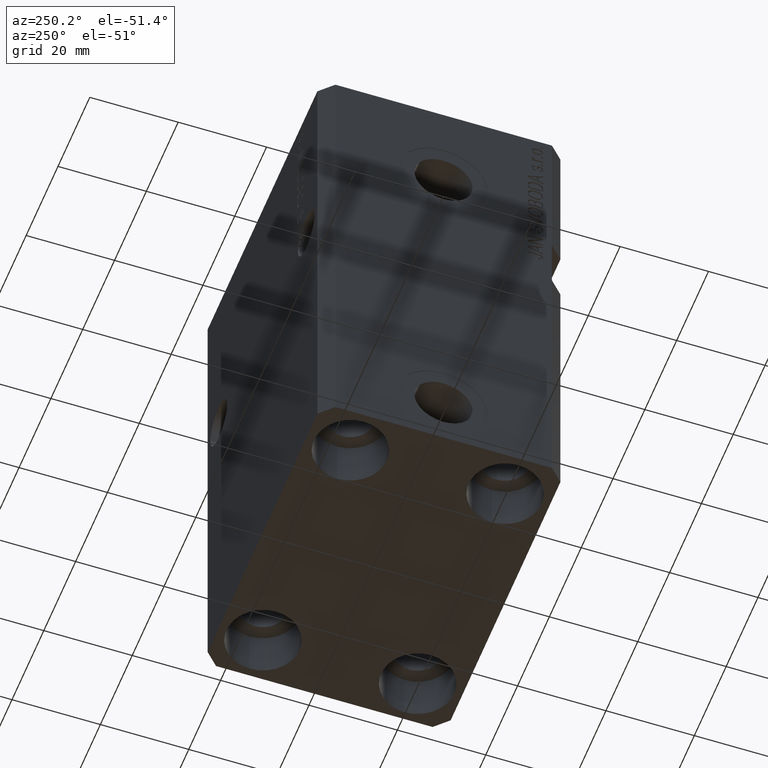
[diagram: clean part render]
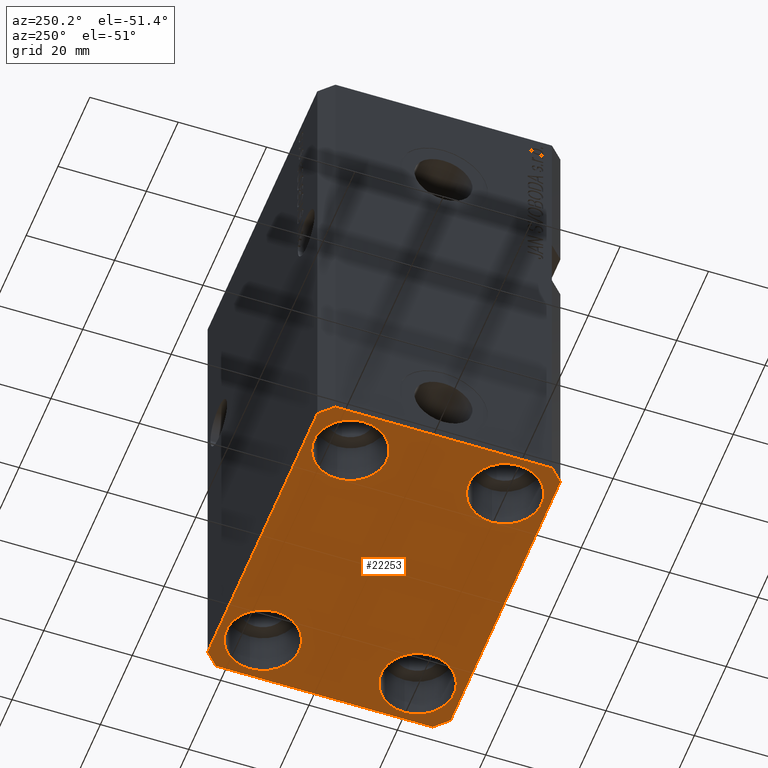
[diagram: same view with one face highlighted and labeled with its STEP entity id]
A machine part, auxiliary view. The second image highlights one B-rep face of the part: STEP entity #22253.
In plain terms, the highlighted planar face has unit normal (0, 0, 1).
Its self-contained STEP definition (entity closure, byte-faithful):
#296 = VERTEX_POINT ( 'NONE', #2257 ) ;
#429 = CARTESIAN_POINT ( 'NONE',  ( -34.49999999999999289, 27.50000000000000000, -110.0000000000000000 ) ) ;
#653 = DIRECTION ( 'NONE',  ( -0.000000000000000000, -0.000000000000000000, 1.000000000000000000 ) ) ;
#820 = DIRECTION ( 'NONE',  ( 0.000000000000000000, 0.000000000000000000, 1.000000000000000000 ) ) ;
#892 = ORIENTED_EDGE ( 'NONE', *, *, #43334, .F. ) ;
#923 = CARTESIAN_POINT ( 'NONE',  ( -34.49999999999998579, -27.49999999999999645, -110.0000000000000000 ) ) ;
#1073 = EDGE_CURVE ( 'NONE', #30993, #12385, #43255, .T. ) ;
#1864 = VERTEX_POINT ( 'NONE', #15186 ) ;
#2257 = CARTESIAN_POINT ( 'NONE',  ( -37.49999999999999289, 24.50000000000000000, -110.0000000000000000 ) ) ;
#2400 = VECTOR ( 'NONE', #29474, 1000.000000000000000 ) ;
#2577 = CARTESIAN_POINT ( 'NONE',  ( 34.50000000000056843, 27.50000000000000000, -110.0000000000000000 ) ) ;
#2750 = VERTEX_POINT ( 'NONE', #17892 ) ;
#3604 = CARTESIAN_POINT ( 'NONE',  ( -35.75000000000000711, -17.50000000000000000, -110.0000000000000000 ) ) ;
#3636 = EDGE_LOOP ( 'NONE', ( #18121, #14247 ) ) ;
#3716 = FACE_BOUND ( 'NONE', #29527, .T. ) ;
#3773 = DIRECTION ( 'NONE',  ( 1.000000000000000000, 0.000000000000000000, 0.000000000000000000 ) ) ;
#3844 = DIRECTION ( 'NONE',  ( -0.7071067811865471286, -0.7071067811865479058, 0.000000000000000000 ) ) ;
#4303 = VERTEX_POINT ( 'NONE', #12744 ) ;
#4377 = CARTESIAN_POINT ( 'NONE',  ( -35.75000000000000711, 17.50000000000000000, -110.0000000000000000 ) ) ;
#4928 = EDGE_CURVE ( 'NONE', #8348, #35864, #11040, .T. ) ;
#5769 = DIRECTION ( 'NONE',  ( 0.7071067811865474617, 0.7071067811865474617, 0.000000000000000000 ) ) ;
#6073 = AXIS2_PLACEMENT_3D ( 'NONE', #24381, #27515, #27737 ) ;
#6365 = EDGE_CURVE ( 'NONE', #42876, #30993, #7575, .T. ) ;
#6381 = EDGE_LOOP ( 'NONE', ( #14491, #40687, #37015, #21119, #892, #12714, #30726, #32409 ) ) ;
#6747 = CARTESIAN_POINT ( 'NONE',  ( -19.25000000000000355, 17.50000000000000000, -110.0000000000000000 ) ) ;
#7071 = EDGE_CURVE ( 'NONE', #2750, #20838, #11811, .T. ) ;
#7174 = DIRECTION ( 'NONE',  ( 1.076236605503979380E-14, 1.000000000000000000, 0.000000000000000000 ) ) ;
#7550 = DIRECTION ( 'NONE',  ( 1.000000000000000000, 0.000000000000000000, 0.000000000000000000 ) ) ;
#7575 = LINE ( 'NONE', #17157, #23913 ) ;
#7703 = EDGE_LOOP ( 'NONE', ( #39911, #8908 ) ) ;
#7730 = FACE_OUTER_BOUND ( 'NONE', #6381, .T. ) ;
#7873 = VECTOR ( 'NONE', #7174, 1000.000000000000000 ) ;
#8288 = AXIS2_PLACEMENT_3D ( 'NONE', #30766, #18060, #31642 ) ;
#8348 = VERTEX_POINT ( 'NONE', #4377 ) ;
#8908 = ORIENTED_EDGE ( 'NONE', *, *, #26597, .T. ) ;
#9004 = CARTESIAN_POINT ( 'NONE',  ( 34.49999999999999289, -27.49999999999999645, -110.0000000000000000 ) ) ;
#10408 = FACE_BOUND ( 'NONE', #36317, .T. ) ;
#10419 = CIRCLE ( 'NONE', #8288, 8.250000000000000000 ) ;
#10887 = CARTESIAN_POINT ( 'NONE',  ( -27.50000000000000355, -17.50000000000000000, -110.0000000000000000 ) ) ;
#11040 = CIRCLE ( 'NONE', #6073, 8.250000000000000000 ) ;
#11408 = CARTESIAN_POINT ( 'NONE',  ( -34.49999999999999289, 27.50000000000000000, -110.0000000000000000 ) ) ;
#11642 = LINE ( 'NONE', #26134, #13032 ) ;
#11811 = CIRCLE ( 'NONE', #18220, 8.249999999999992895 ) ;
#12127 = VERTEX_POINT ( 'NONE', #12724 ) ;
#12185 = EDGE_CURVE ( 'NONE', #4303, #18613, #10419, .T. ) ;
#12220 = DIRECTION ( 'NONE',  ( 0.000000000000000000, -1.000000000000000000, 0.000000000000000000 ) ) ;
#12385 = VERTEX_POINT ( 'NONE', #429 ) ;
#12605 = CARTESIAN_POINT ( 'NONE',  ( 27.49999999999999645, 17.50000000000001066, -110.0000000000000000 ) ) ;
#12684 = DIRECTION ( 'NONE',  ( -0.000000000000000000, -0.000000000000000000, 1.000000000000000000 ) ) ;
#12714 = ORIENTED_EDGE ( 'NONE', *, *, #20495, .F. ) ;
#12724 = CARTESIAN_POINT ( 'NONE',  ( 37.49999999999999289, -24.50000000000000000, -110.0000000000000000 ) ) ;
#12744 = CARTESIAN_POINT ( 'NONE',  ( 35.75000000000000711, -17.50000000000000000, -110.0000000000000000 ) ) ;
#12770 = VERTEX_POINT ( 'NONE', #9004 ) ;
#12851 = CIRCLE ( 'NONE', #37071, 8.249999999999992895 ) ;
#13032 = VECTOR ( 'NONE', #35704, 1000.000000000000000 ) ;
#14247 = ORIENTED_EDGE ( 'NONE', *, *, #20988, .T. ) ;
#14491 = ORIENTED_EDGE ( 'NONE', *, *, #1073, .F. ) ;
#14855 = DIRECTION ( 'NONE',  ( 0.7071067811865483499, -0.7071067811865466846, 0.000000000000000000 ) ) ;
#14959 = CIRCLE ( 'NONE', #16403, 8.250000000000000000 ) ;
#15186 = CARTESIAN_POINT ( 'NONE',  ( -37.49999999999999289, -24.50000000000000000, -110.0000000000000000 ) ) ;
#15510 = CARTESIAN_POINT ( 'NONE',  ( -37.49999999999999289, -24.50000000000000000, -110.0000000000000000 ) ) ;
#15722 = CARTESIAN_POINT ( 'NONE',  ( 19.25000000000000000, -17.50000000000000000, -110.0000000000000000 ) ) ;
#16016 = CARTESIAN_POINT ( 'NONE',  ( 34.49999999999999289, -27.49999999999999645, -110.0000000000000000 ) ) ;
#16403 = AXIS2_PLACEMENT_3D ( 'NONE', #27860, #653, #3773 ) ;
#16479 = EDGE_CURVE ( 'NONE', #37735, #18337, #31191, .T. ) ;
#16484 = CARTESIAN_POINT ( 'NONE',  ( -27.50000000000000355, 17.50000000000000000, -110.0000000000000000 ) ) ;
#16761 = LINE ( 'NONE', #23880, #7873 ) ;
#17157 = CARTESIAN_POINT ( 'NONE',  ( 37.50000000000051870, 24.49999999999995381, -110.0000000000000000 ) ) ;
#17758 = FACE_BOUND ( 'NONE', #3636, .T. ) ;
#17795 = AXIS2_PLACEMENT_3D ( 'NONE', #16484, #12684, #43861 ) ;
#17892 = CARTESIAN_POINT ( 'NONE',  ( 19.25000000000000000, 17.50000000000001066, -110.0000000000000000 ) ) ;
#18060 = DIRECTION ( 'NONE',  ( -0.000000000000000000, -0.000000000000000000, 1.000000000000000000 ) ) ;
#18121 = ORIENTED_EDGE ( 'NONE', *, *, #4928, .T. ) ;
#18220 = AXIS2_PLACEMENT_3D ( 'NONE', #12605, #26225, #43128 ) ;
#18337 = VERTEX_POINT ( 'NONE', #3604 ) ;
#18613 = VERTEX_POINT ( 'NONE', #15722 ) ;
#19267 = DIRECTION ( 'NONE',  ( 1.000000000000000000, 0.000000000000000000, 0.000000000000000000 ) ) ;
#19980 = AXIS2_PLACEMENT_3D ( 'NONE', #25440, #32541, #39001 ) ;
#20264 = EDGE_CURVE ( 'NONE', #296, #1864, #32492, .T. ) ;
#20495 = EDGE_CURVE ( 'NONE', #1864, #37671, #25555, .T. ) ;
#20673 = CIRCLE ( 'NONE', #19980, 8.250000000000000000 ) ;
#20838 = VERTEX_POINT ( 'NONE', #42113 ) ;
#20988 = EDGE_CURVE ( 'NONE', #35864, #8348, #36269, .T. ) ;
#21003 = LINE ( 'NONE', #11408, #39166 ) ;
#21119 = ORIENTED_EDGE ( 'NONE', *, *, #23866, .F. ) ;
#22253 = ADVANCED_FACE ( 'NONE', ( #3716, #10408, #24660, #17758, #7730 ), #31341, .F. ) ;
#22482 = LINE ( 'NONE', #16016, #32797 ) ;
#22531 = ORIENTED_EDGE ( 'NONE', *, *, #16479, .T. ) ;
#22894 = EDGE_CURVE ( 'NONE', #18613, #4303, #14959, .T. ) ;
#23363 = AXIS2_PLACEMENT_3D ( 'NONE', #10887, #38065, #7550 ) ;
#23866 = EDGE_CURVE ( 'NONE', #12770, #12127, #22482, .T. ) ;
#23880 = CARTESIAN_POINT ( 'NONE',  ( 37.49999999999999289, -24.50000000000000000, -110.0000000000000000 ) ) ;
#23913 = VECTOR ( 'NONE', #34079, 1000.000000000000114 ) ;
#24381 = CARTESIAN_POINT ( 'NONE',  ( -27.50000000000000355, 17.50000000000000000, -110.0000000000000000 ) ) ;
#24660 = FACE_BOUND ( 'NONE', #7703, .T. ) ;
#24889 = VECTOR ( 'NONE', #14855, 1000.000000000000000 ) ;
#25440 = CARTESIAN_POINT ( 'NONE',  ( -27.50000000000000355, -17.50000000000000000, -110.0000000000000000 ) ) ;
#25555 = LINE ( 'NONE', #15510, #24889 ) ;
#26134 = CARTESIAN_POINT ( 'NONE',  ( -34.49999999999998579, -27.49999999999999645, -110.0000000000000000 ) ) ;
#26225 = DIRECTION ( 'NONE',  ( -0.000000000000000000, -0.000000000000000000, 1.000000000000000000 ) ) ;
#26597 = EDGE_CURVE ( 'NONE', #20838, #2750, #12851, .T. ) ;
#27477 = EDGE_CURVE ( 'NONE', #12127, #42876, #16761, .T. ) ;
#27515 = DIRECTION ( 'NONE',  ( -0.000000000000000000, -0.000000000000000000, 1.000000000000000000 ) ) ;
#27572 = CARTESIAN_POINT ( 'NONE',  ( 0.000000000000000000, 0.000000000000000000, -110.0000000000000000 ) ) ;
#27737 = DIRECTION ( 'NONE',  ( 1.000000000000000000, 0.000000000000000000, 0.000000000000000000 ) ) ;
#27860 = CARTESIAN_POINT ( 'NONE',  ( 27.50000000000000355, -17.50000000000000000, -110.0000000000000000 ) ) ;
#29225 = AXIS2_PLACEMENT_3D ( 'NONE', #27572, #820, #38239 ) ;
#29474 = DIRECTION ( 'NONE',  ( -1.000000000000000000, 0.000000000000000000, 0.000000000000000000 ) ) ;
#29527 = EDGE_LOOP ( 'NONE', ( #36161, #22531 ) ) ;
#29897 = CARTESIAN_POINT ( 'NONE',  ( 34.50000000000056843, 27.50000000000000000, -110.0000000000000000 ) ) ;
#30107 = ORIENTED_EDGE ( 'NONE', *, *, #12185, .T. ) ;
#30443 = CARTESIAN_POINT ( 'NONE',  ( 37.50000000000051870, 24.49999999999995381, -110.0000000000000000 ) ) ;
#30726 = ORIENTED_EDGE ( 'NONE', *, *, #20264, .F. ) ;
#30766 = CARTESIAN_POINT ( 'NONE',  ( 27.50000000000000355, -17.50000000000000000, -110.0000000000000000 ) ) ;
#30993 = VERTEX_POINT ( 'NONE', #2577 ) ;
#31191 = CIRCLE ( 'NONE', #23363, 8.250000000000000000 ) ;
#31341 = PLANE ( 'NONE',  #29225 ) ;
#31642 = DIRECTION ( 'NONE',  ( 1.000000000000000000, 0.000000000000000000, 0.000000000000000000 ) ) ;
#32409 = ORIENTED_EDGE ( 'NONE', *, *, #33821, .F. ) ;
#32492 = LINE ( 'NONE', #39174, #39086 ) ;
#32541 = DIRECTION ( 'NONE',  ( -0.000000000000000000, -0.000000000000000000, 1.000000000000000000 ) ) ;
#32797 = VECTOR ( 'NONE', #5769, 1000.000000000000114 ) ;
#33298 = CARTESIAN_POINT ( 'NONE',  ( 27.49999999999999645, 17.50000000000001066, -110.0000000000000000 ) ) ;
#33327 = EDGE_CURVE ( 'NONE', #18337, #37735, #20673, .T. ) ;
#33821 = EDGE_CURVE ( 'NONE', #12385, #296, #21003, .T. ) ;
#34079 = DIRECTION ( 'NONE',  ( -0.7071067811865356934, 0.7071067811865594521, 0.000000000000000000 ) ) ;
#34579 = ORIENTED_EDGE ( 'NONE', *, *, #22894, .T. ) ;
#35704 = DIRECTION ( 'NONE',  ( 1.000000000000000000, 0.000000000000000000, 0.000000000000000000 ) ) ;
#35864 = VERTEX_POINT ( 'NONE', #6747 ) ;
#36161 = ORIENTED_EDGE ( 'NONE', *, *, #33327, .T. ) ;
#36269 = CIRCLE ( 'NONE', #17795, 8.250000000000000000 ) ;
#36310 = CARTESIAN_POINT ( 'NONE',  ( -19.25000000000000355, -17.50000000000000000, -110.0000000000000000 ) ) ;
#36317 = EDGE_LOOP ( 'NONE', ( #34579, #30107 ) ) ;
#37015 = ORIENTED_EDGE ( 'NONE', *, *, #27477, .F. ) ;
#37071 = AXIS2_PLACEMENT_3D ( 'NONE', #33298, #39539, #19267 ) ;
#37671 = VERTEX_POINT ( 'NONE', #923 ) ;
#37735 = VERTEX_POINT ( 'NONE', #36310 ) ;
#38065 = DIRECTION ( 'NONE',  ( -0.000000000000000000, -0.000000000000000000, 1.000000000000000000 ) ) ;
#38239 = DIRECTION ( 'NONE',  ( 1.000000000000000000, 0.000000000000000000, -0.000000000000000000 ) ) ;
#39001 = DIRECTION ( 'NONE',  ( 1.000000000000000000, 0.000000000000000000, 0.000000000000000000 ) ) ;
#39086 = VECTOR ( 'NONE', #12220, 1000.000000000000000 ) ;
#39166 = VECTOR ( 'NONE', #3844, 1000.000000000000000 ) ;
#39174 = CARTESIAN_POINT ( 'NONE',  ( -37.49999999999999289, 24.50000000000000000, -110.0000000000000000 ) ) ;
#39539 = DIRECTION ( 'NONE',  ( -0.000000000000000000, -0.000000000000000000, 1.000000000000000000 ) ) ;
#39911 = ORIENTED_EDGE ( 'NONE', *, *, #7071, .T. ) ;
#40687 = ORIENTED_EDGE ( 'NONE', *, *, #6365, .F. ) ;
#42113 = CARTESIAN_POINT ( 'NONE',  ( 35.74999999999999289, 17.50000000000001066, -110.0000000000000000 ) ) ;
#42876 = VERTEX_POINT ( 'NONE', #30443 ) ;
#43128 = DIRECTION ( 'NONE',  ( 1.000000000000000000, 0.000000000000000000, 0.000000000000000000 ) ) ;
#43255 = LINE ( 'NONE', #29897, #2400 ) ;
#43334 = EDGE_CURVE ( 'NONE', #37671, #12770, #11642, .T. ) ;
#43861 = DIRECTION ( 'NONE',  ( 1.000000000000000000, 0.000000000000000000, 0.000000000000000000 ) ) ;